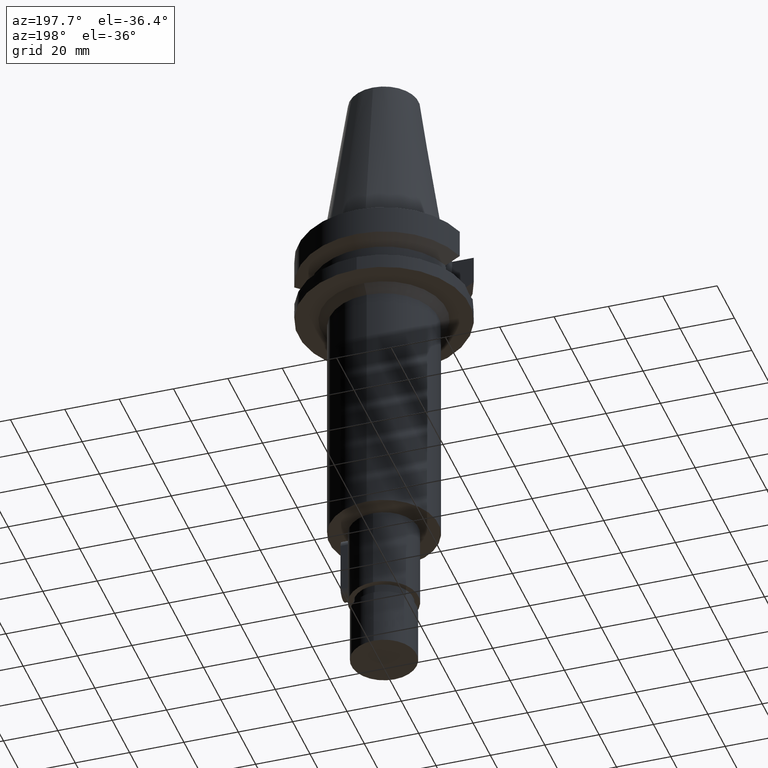
[diagram: clean part render]
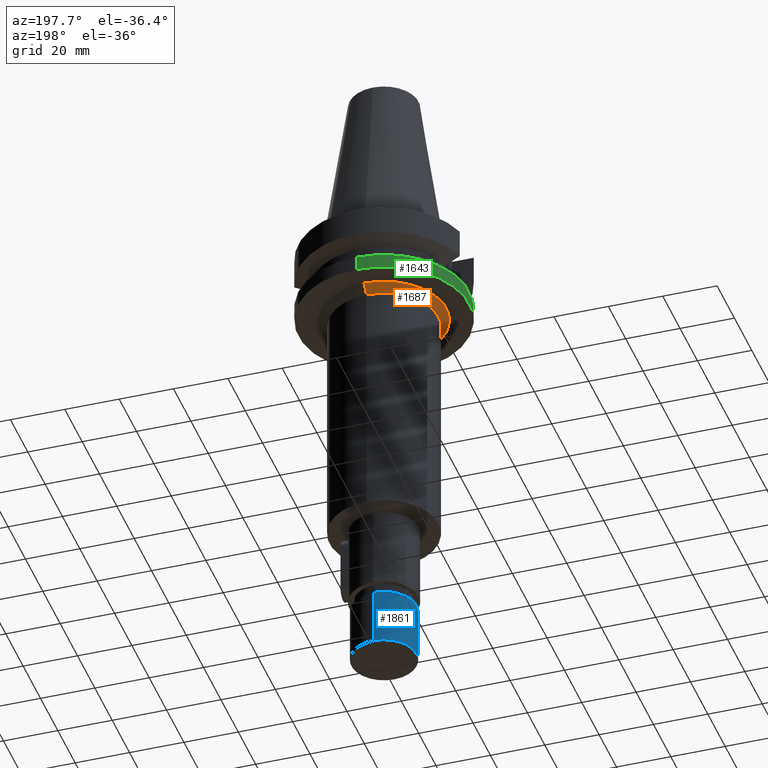
[diagram: same view with three faces highlighted in distinct colors, each labeled with its STEP entity id]
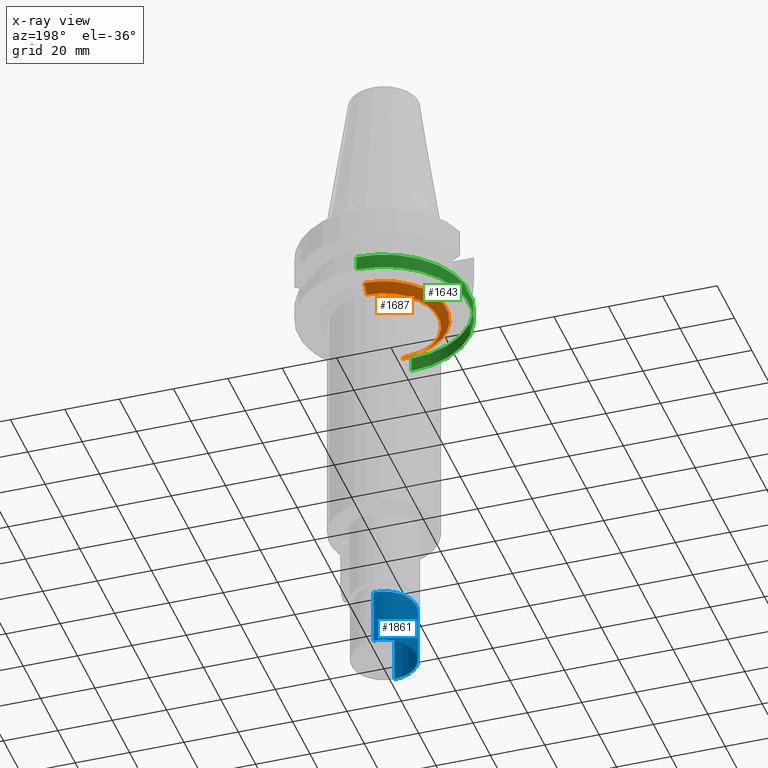
[diagram: x-ray of the same camera — body ghosted, the three highlighted faces saturated]
A machine part, auxiliary view with three faces highlighted in distinct colors.
The next image is the same camera in x-ray (body ghosted, the three faces saturated) — at least one of them is partly hidden behind the body in this view.
Their STEP definitions:

[orange] entity #1687 — the highlighted conical surface has half-angle 45 deg.
#640=CARTESIAN_POINT('',(0.E0,0.E0,-2.7E1));
#641=DIRECTION('',(0.E0,0.E0,-1.E0));
#642=DIRECTION('',(0.E0,-1.E0,0.E0));
#643=AXIS2_PLACEMENT_3D('',#640,#641,#642);
#648=DIRECTION('',(0.E0,-7.071067811865E-1,-7.071067811866E-1));
#649=VECTOR('',#648,4.242640687119E0);
#650=CARTESIAN_POINT('',(0.E0,2.3E1,-2.7E1));
#651=LINE('',#650,#649);
#663=DIRECTION('',(0.E0,7.071067811865E-1,-7.071067811865E-1));
#664=VECTOR('',#663,4.242640687119E0);
#665=CARTESIAN_POINT('',(0.E0,-2.3E1,-2.7E1));
#666=LINE('',#665,#664);
#670=CARTESIAN_POINT('',(0.E0,0.E0,-3.E1));
#671=DIRECTION('',(0.E0,0.E0,-1.E0));
#672=DIRECTION('',(0.E0,-1.E0,0.E0));
#673=AXIS2_PLACEMENT_3D('',#670,#671,#672);
#1169=CARTESIAN_POINT('',(0.E0,2.3E1,-2.7E1));
#1170=CARTESIAN_POINT('',(0.E0,-2.3E1,-2.7E1));
#1171=VERTEX_POINT('',#1169);
#1172=VERTEX_POINT('',#1170);
#1173=CARTESIAN_POINT('',(0.E0,2.E1,-3.E1));
#1174=VERTEX_POINT('',#1173);
#1175=CARTESIAN_POINT('',(0.E0,-2.E1,-3.E1));
#1176=VERTEX_POINT('',#1175);
#1675=CARTESIAN_POINT('',(0.E0,0.E0,-2.85E1));
#1676=DIRECTION('',(0.E0,0.E0,1.E0));
#1677=DIRECTION('',(0.E0,1.E0,0.E0));
#1678=AXIS2_PLACEMENT_3D('',#1675,#1676,#1677);
#1679=CONICAL_SURFACE('',#1678,2.15E1,4.5E1);
#1680=ORIENTED_EDGE('',*,*,#1665,.F.);
#1681=ORIENTED_EDGE('',*,*,#1655,.F.);
#1682=ORIENTED_EDGE('',*,*,#1669,.T.);
#1684=ORIENTED_EDGE('',*,*,#1683,.T.);
#1685=EDGE_LOOP('',(#1680,#1681,#1682,#1684));
#1686=FACE_OUTER_BOUND('',#1685,.F.);
#644=CIRCLE('',#643,2.3E1);
#674=CIRCLE('',#673,2.E1);
#1655=EDGE_CURVE('',#1172,#1171,#644,.T.);
#1665=EDGE_CURVE('',#1171,#1174,#651,.T.);
#1669=EDGE_CURVE('',#1172,#1176,#666,.T.);
#1683=EDGE_CURVE('',#1176,#1174,#674,.T.);
#1687=ADVANCED_FACE('',(#1686),#1679,.T.);

[blue] entity #1861 — the highlighted cylindrical surface (edge-blend (fillet) strip) has radius 12 mm, axis along (0, 0, -1).
#806=CARTESIAN_POINT('',(0.E0,2.172768351047E-14,-1.54E2));
#807=DIRECTION('',(0.E0,0.E0,-1.E0));
#808=DIRECTION('',(0.E0,-1.E0,0.E0));
#809=AXIS2_PLACEMENT_3D('',#806,#807,#808);
#830=DIRECTION('',(0.E0,0.E0,-1.E0));
#831=VECTOR('',#830,2.1E1);
#832=CARTESIAN_POINT('',(0.E0,1.2E1,-1.54E2));
#833=LINE('',#832,#831);
#837=DIRECTION('',(0.E0,0.E0,-1.E0));
#838=VECTOR('',#837,2.1E1);
#839=CARTESIAN_POINT('',(0.E0,-1.2E1,-1.54E2));
#840=LINE('',#839,#838);
#844=CARTESIAN_POINT('',(0.E0,2.172768351047E-14,-1.75E2));
#845=DIRECTION('',(0.E0,0.E0,1.E0));
#846=DIRECTION('',(0.E0,1.E0,0.E0));
#847=AXIS2_PLACEMENT_3D('',#844,#845,#846);
#1204=CARTESIAN_POINT('',(0.E0,1.2E1,-1.54E2));
#1205=CARTESIAN_POINT('',(0.E0,-1.2E1,-1.54E2));
#1206=VERTEX_POINT('',#1204);
#1207=VERTEX_POINT('',#1205);
#1208=CARTESIAN_POINT('',(0.E0,1.2E1,-1.75E2));
#1209=VERTEX_POINT('',#1208);
#1210=CARTESIAN_POINT('',(0.E0,-1.2E1,-1.75E2));
#1211=VERTEX_POINT('',#1210);
#1849=CARTESIAN_POINT('',(0.E0,2.172768351047E-14,7.742E1));
#1850=DIRECTION('',(0.E0,0.E0,-1.E0));
#1851=DIRECTION('',(0.E0,-1.E0,0.E0));
#1852=AXIS2_PLACEMENT_3D('',#1849,#1850,#1851);
#1853=CYLINDRICAL_SURFACE('',#1852,1.2E1);
#1854=ORIENTED_EDGE('',*,*,#1839,.F.);
#1855=ORIENTED_EDGE('',*,*,#1825,.F.);
#1856=ORIENTED_EDGE('',*,*,#1843,.T.);
#1858=ORIENTED_EDGE('',*,*,#1857,.F.);
#1859=EDGE_LOOP('',(#1854,#1855,#1856,#1858));
#1860=FACE_OUTER_BOUND('',#1859,.F.);
#810=CIRCLE('',#809,1.2E1);
#848=CIRCLE('',#847,1.2E1);
#1825=EDGE_CURVE('',#1207,#1206,#810,.T.);
#1839=EDGE_CURVE('',#1206,#1209,#833,.T.);
#1843=EDGE_CURVE('',#1207,#1211,#840,.T.);
#1857=EDGE_CURVE('',#1209,#1211,#848,.T.);
#1861=ADVANCED_FACE('',(#1860),#1853,.T.);

[green] entity #1643 — the highlighted cylindrical surface (partial cylindrical patch) has radius 31.5 mm, axis along (0, 0, -1).
#458=CARTESIAN_POINT('',(-3.117899877609E1,-4.485536235554E0,
-2.163449434733E1));
#503=CARTESIAN_POINT('',(0.E0,0.E0,-2.163449434733E1));
#504=DIRECTION('',(0.E0,0.E0,-1.E0));
#505=DIRECTION('',(0.E0,-1.E0,0.E0));
#506=AXIS2_PLACEMENT_3D('',#503,#504,#505);
#537=DIRECTION('',(0.E0,1.099151708819E-13,-1.E0));
#538=VECTOR('',#537,5.365505652669E0);
#539=CARTESIAN_POINT('',(0.E0,3.15E1,-2.163449434733E1));
#540=LINE('',#539,#538);
#550=CARTESIAN_POINT('',(-3.117899877609E1,4.485536235554E0,-2.163449434733E1));
#555=CARTESIAN_POINT('',(0.E0,0.E0,-2.163449434733E1));
#556=DIRECTION('',(0.E0,0.E0,-1.E0));
#557=DIRECTION('',(-9.898094849553E-1,1.423979757319E-1,0.E0));
#558=AXIS2_PLACEMENT_3D('',#555,#556,#557);
#597=CARTESIAN_POINT('',(-3.117899877609E1,4.485536235554E0,-2.163449434733E1));
#598=CARTESIAN_POINT('',(-3.125745215248E1,3.940206179552E0,-2.200043043755E1));
#599=CARTESIAN_POINT('',(-3.139236738287E1,2.800251512876E0,-2.257598365390E1));
#600=CARTESIAN_POINT('',(-3.150499472153E1,9.469482783879E-1,
-2.301989358393E1));
#601=CARTESIAN_POINT('',(-3.150416599109E1,-9.709817392480E-1,
-2.301671252237E1));
#602=CARTESIAN_POINT('',(-3.139078463857E1,-2.815304101172E0,
-2.256950019950E1));
#603=CARTESIAN_POINT('',(-3.125669187269E1,-3.945490890587E0,
-2.199688420628E1));
#604=CARTESIAN_POINT('',(-3.117899877609E1,-4.485536235554E0,
-2.163449434733E1));
#609=DIRECTION('',(0.E0,-1.105773104655E-13,-1.E0));
#610=VECTOR('',#609,5.365505652669E0);
#611=CARTESIAN_POINT('',(0.E0,-3.15E1,-2.163449434733E1));
#612=LINE('',#611,#610);
#616=CARTESIAN_POINT('',(0.E0,2.172768351047E-14,-2.7E1));
#617=DIRECTION('',(0.E0,0.E0,1.E0));
#618=DIRECTION('',(0.E0,1.E0,0.E0));
#619=AXIS2_PLACEMENT_3D('',#616,#617,#618);
#1159=CARTESIAN_POINT('',(0.E0,3.15E1,-2.163449434733E1));
#1160=VERTEX_POINT('',#1159);
#1161=CARTESIAN_POINT('',(0.E0,3.15E1,-2.7E1));
#1162=VERTEX_POINT('',#1161);
#1163=CARTESIAN_POINT('',(0.E0,-3.15E1,-2.7E1));
#1164=VERTEX_POINT('',#1163);
#1165=CARTESIAN_POINT('',(0.E0,-3.15E1,-2.163449434733E1));
#1166=VERTEX_POINT('',#1165);
#1167=VERTEX_POINT('',#458);
#1168=VERTEX_POINT('',#550);
#1629=CARTESIAN_POINT('',(0.E0,2.172768351047E-14,7.742E1));
#1630=DIRECTION('',(0.E0,0.E0,-1.E0));
#1631=DIRECTION('',(0.E0,-1.E0,0.E0));
#1632=AXIS2_PLACEMENT_3D('',#1629,#1630,#1631);
#1633=CYLINDRICAL_SURFACE('',#1632,3.15E1);
#1634=ORIENTED_EDGE('',*,*,#1547,.T.);
#1635=ORIENTED_EDGE('',*,*,#1572,.F.);
#1636=ORIENTED_EDGE('',*,*,#1608,.T.);
#1638=ORIENTED_EDGE('',*,*,#1637,.F.);
#1639=ORIENTED_EDGE('',*,*,#1604,.F.);
#1640=ORIENTED_EDGE('',*,*,#1620,.F.);
#1641=EDGE_LOOP('',(#1634,#1635,#1636,#1638,#1639,#1640));
#1642=FACE_OUTER_BOUND('',#1641,.F.);
#507=CIRCLE('',#506,3.15E1);
#559=CIRCLE('',#558,3.15E1);
#605=B_SPLINE_CURVE_WITH_KNOTS('',3,(#597,#598,#599,#600,#601,#602,#603,#604),
.UNSPECIFIED.,.F.,.F.,(4,1,1,1,1,4),(0.E0,2.E-1,4.E-1,6.E-1,8.E-1,1.E0),
.UNSPECIFIED.);
#620=CIRCLE('',#619,3.15E1);
#1547=EDGE_CURVE('',#1168,#1167,#605,.T.);
#1572=EDGE_CURVE('',#1166,#1167,#507,.T.);
#1604=EDGE_CURVE('',#1160,#1162,#540,.T.);
#1608=EDGE_CURVE('',#1166,#1164,#612,.T.);
#1620=EDGE_CURVE('',#1168,#1160,#559,.T.);
#1637=EDGE_CURVE('',#1162,#1164,#620,.T.);
#1643=ADVANCED_FACE('',(#1642),#1633,.T.);